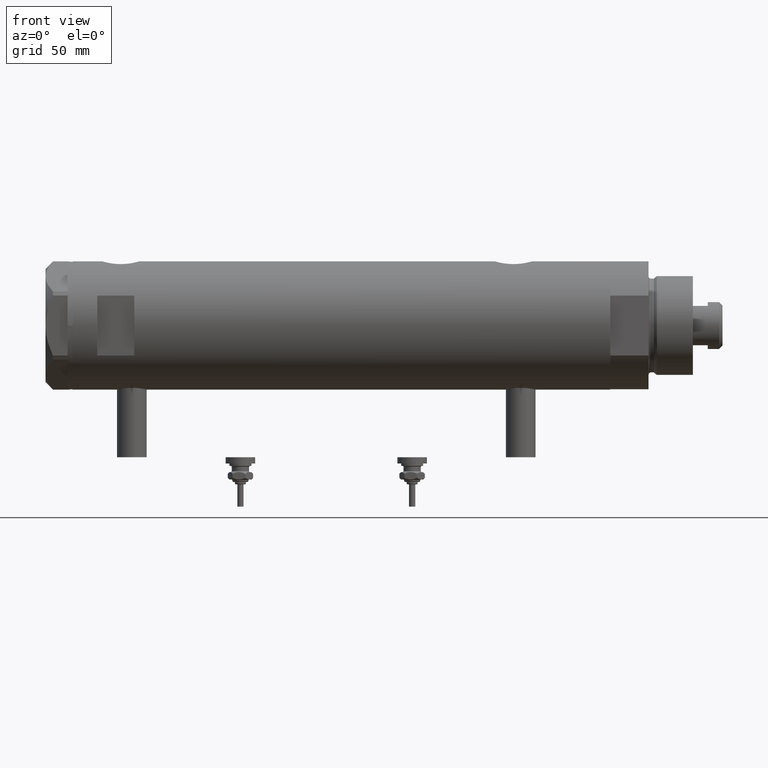
[diagram: clean part render]
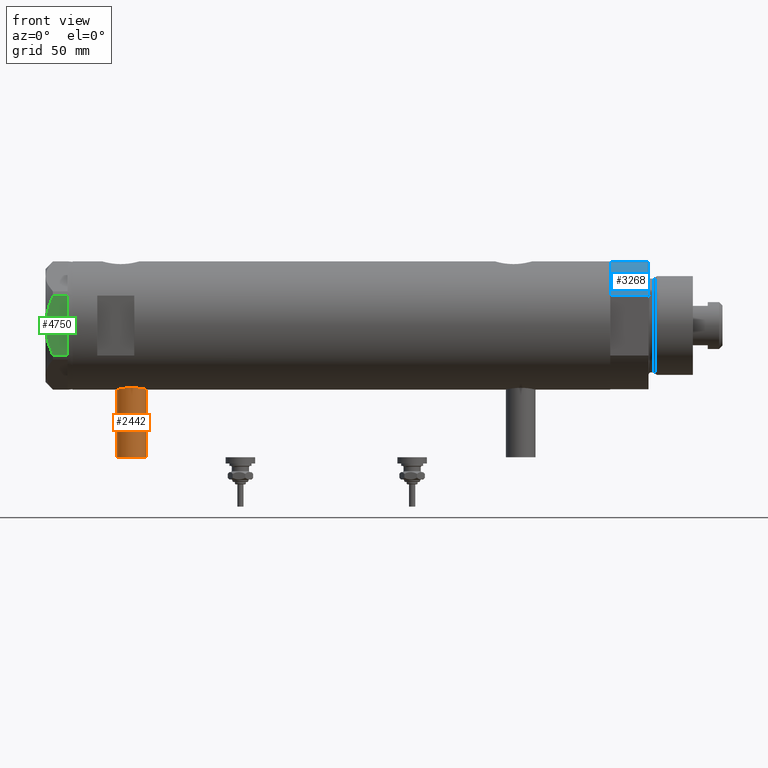
[diagram: same view with three faces highlighted in distinct colors, each labeled with its STEP entity id]
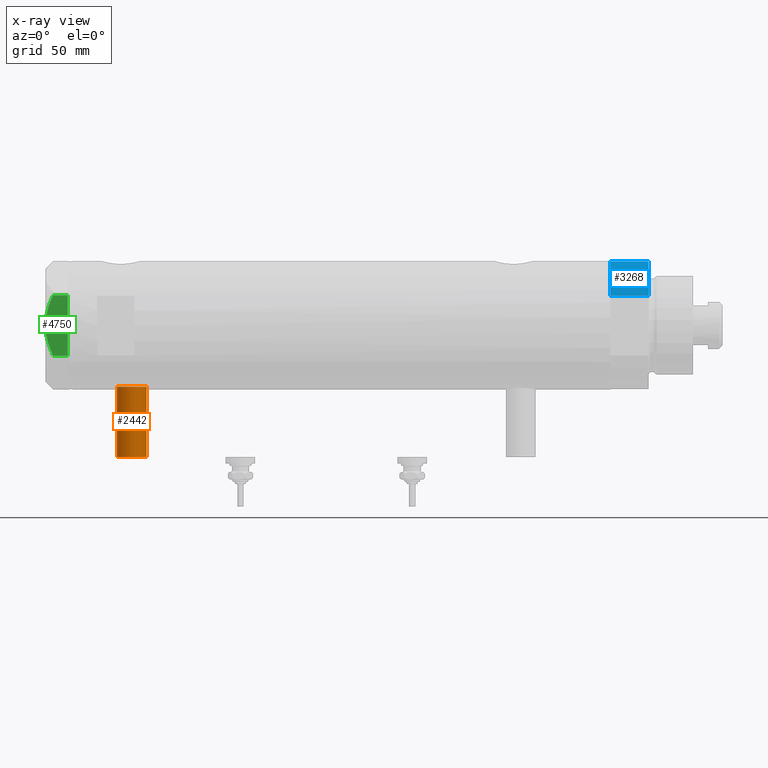
[diagram: x-ray of the same camera — body ghosted, the three highlighted faces saturated]
A machine part, front view with three faces highlighted in distinct colors.
The next image is the same camera in x-ray (body ghosted, the three faces saturated) — at least one of them is partly hidden behind the body in this view.
Their STEP definitions:

[orange] entity #2442 — the highlighted cylindrical surface (edge-blend (fillet) strip) has radius 6 mm, axis along (0, 0, 1).
#20 = LINE ( 'NONE', #2933, #6254 ) ;
#389 = VERTEX_POINT ( 'NONE', #2822 ) ;
#465 = DIRECTION ( 'NONE',  ( 0.000000000000000000, 0.000000000000000000, 1.000000000000000000 ) ) ;
#752 = VERTEX_POINT ( 'NONE', #2598 ) ;
#934 = AXIS2_PLACEMENT_3D ( 'NONE', #2471, #5476, #2539 ) ;
#972 = CARTESIAN_POINT ( 'NONE',  ( -53.40000000000000568, 0.000000000000000000, 84.95000000000000284 ) ) ;
#1133 = AXIS2_PLACEMENT_3D ( 'NONE', #972, #2448, #465 ) ;
#1472 = EDGE_CURVE ( 'NONE', #2613, #752, #2057, .T. ) ;
#2057 = CIRCLE ( 'NONE', #1133, 5.999999999999991118 ) ;
#2099 = DIRECTION ( 'NONE',  ( 0.000000000000000000, 0.000000000000000000, 1.000000000000000000 ) ) ;
#2103 = EDGE_CURVE ( 'NONE', #752, #389, #2445, .T. ) ;
#2442 = ADVANCED_FACE ( 'NONE', ( #3528 ), #3020, .T. ) ;
#2445 = LINE ( 'NONE', #3939, #4502 ) ;
#2448 = DIRECTION ( 'NONE',  ( -1.000000000000000000, 0.000000000000000000, 0.000000000000000000 ) ) ;
#2471 = CARTESIAN_POINT ( 'NONE',  ( -53.40000000000000568, 0.000000000000000000, 84.95000000000000284 ) ) ;
#2539 = DIRECTION ( 'NONE',  ( 0.000000000000000000, 0.000000000000000000, -1.000000000000000000 ) ) ;
#2598 = CARTESIAN_POINT ( 'NONE',  ( -53.40000000000000568, 7.347880794884101001E-16, 90.94999999999998863 ) ) ;
#2613 = VERTEX_POINT ( 'NONE', #3170 ) ;
#2793 = ORIENTED_EDGE ( 'NONE', *, *, #2103, .F. ) ;
#2822 = CARTESIAN_POINT ( 'NONE',  ( -24.80000000000000426, 7.347880794884101001E-16, 90.94999999999998863 ) ) ;
#2933 = CARTESIAN_POINT ( 'NONE',  ( -53.40000000000000568, 0.000000000000000000, 78.95000000000000284 ) ) ;
#3020 = CYLINDRICAL_SURFACE ( 'NONE', #934, 5.999999999999991118 ) ;
#3057 = DIRECTION ( 'NONE',  ( -1.000000000000000000, 0.000000000000000000, 0.000000000000000000 ) ) ;
#3170 = CARTESIAN_POINT ( 'NONE',  ( -53.40000000000000568, 0.000000000000000000, 78.95000000000000284 ) ) ;
#3528 = FACE_OUTER_BOUND ( 'NONE', #5582, .T. ) ;
#3661 = EDGE_CURVE ( 'NONE', #2613, #6178, #20, .T. ) ;
#3765 = EDGE_CURVE ( 'NONE', #6178, #389, #5325, .T. ) ;
#3905 = DIRECTION ( 'NONE',  ( 1.000000000000000000, -0.000000000000000000, -0.000000000000000000 ) ) ;
#3939 = CARTESIAN_POINT ( 'NONE',  ( -53.40000000000000568, 7.347880794884104945E-16, 90.94999999999998863 ) ) ;
#4196 = AXIS2_PLACEMENT_3D ( 'NONE', #5485, #3057, #2099 ) ;
#4502 = VECTOR ( 'NONE', #3905, 1000.000000000000000 ) ;
#4934 = DIRECTION ( 'NONE',  ( 1.000000000000000000, -0.000000000000000000, -0.000000000000000000 ) ) ;
#5045 = ORIENTED_EDGE ( 'NONE', *, *, #3661, .T. ) ;
#5325 = CIRCLE ( 'NONE', #4196, 5.999999999999991118 ) ;
#5441 = CARTESIAN_POINT ( 'NONE',  ( -24.80000000000000426, 0.000000000000000000, 78.95000000000000284 ) ) ;
#5476 = DIRECTION ( 'NONE',  ( 1.000000000000000000, -0.000000000000000000, -0.000000000000000000 ) ) ;
#5485 = CARTESIAN_POINT ( 'NONE',  ( -24.80000000000000426, 0.000000000000000000, 84.95000000000000284 ) ) ;
#5582 = EDGE_LOOP ( 'NONE', ( #2793, #6241, #5045, #5609 ) ) ;
#5609 = ORIENTED_EDGE ( 'NONE', *, *, #3765, .T. ) ;
#6178 = VERTEX_POINT ( 'NONE', #5441 ) ;
#6241 = ORIENTED_EDGE ( 'NONE', *, *, #1472, .F. ) ;
#6254 = VECTOR ( 'NONE', #4934, 1000.000000000000000 ) ;

[blue] entity #3268 — the highlighted cylindrical surface (partial cylindrical patch) has radius 26 mm, axis along (-1, -0, 0).
#94 = FACE_OUTER_BOUND ( 'NONE', #3862, .T. ) ;
#875 = ORIENTED_EDGE ( 'NONE', *, *, #1741, .T. ) ;
#887 = CARTESIAN_POINT ( 'NONE',  ( -26.00000000000000355, 0.000000000000000000, 15.50000000000000000 ) ) ;
#1006 = EDGE_CURVE ( 'NONE', #2199, #6092, #4363, .T. ) ;
#1026 = VECTOR ( 'NONE', #1940, 1000.000000000000000 ) ;
#1267 = CIRCLE ( 'NONE', #2600, 26.00000000000000355 ) ;
#1348 = CARTESIAN_POINT ( 'NONE',  ( -26.00000000000000355, 0.000000000000000000, 0.000000000000000000 ) ) ;
#1458 = CARTESIAN_POINT ( 'NONE',  ( -12.12435565298215145, -22.99999999999999645, 0.000000000000000000 ) ) ;
#1493 = CARTESIAN_POINT ( 'NONE',  ( 0.000000000000000000, 0.000000000000000000, 15.50000000000000000 ) ) ;
#1656 = DIRECTION ( 'NONE',  ( 0.000000000000000000, 0.000000000000000000, 1.000000000000000000 ) ) ;
#1741 = EDGE_CURVE ( 'NONE', #6092, #6144, #3188, .T. ) ;
#1940 = DIRECTION ( 'NONE',  ( -0.000000000000000000, -0.000000000000000000, -1.000000000000000000 ) ) ;
#2199 = VERTEX_POINT ( 'NONE', #2702 ) ;
#2470 = AXIS2_PLACEMENT_3D ( 'NONE', #3642, #1656, #3134 ) ;
#2523 = CYLINDRICAL_SURFACE ( 'NONE', #3486, 26.00000000000000355 ) ;
#2600 = AXIS2_PLACEMENT_3D ( 'NONE', #5167, #5384, #5194 ) ;
#2665 = CARTESIAN_POINT ( 'NONE',  ( -12.12435565298215323, -22.99999999999999645, 15.50000000000000000 ) ) ;
#2702 = CARTESIAN_POINT ( 'NONE',  ( -26.00000000000000355, 0.000000000000000000, 15.50000000000000000 ) ) ;
#3134 = DIRECTION ( 'NONE',  ( 1.000000000000000000, 0.000000000000000000, 0.000000000000000000 ) ) ;
#3188 = CIRCLE ( 'NONE', #2470, 26.00000000000000355 ) ;
#3268 = ADVANCED_FACE ( 'NONE', ( #94 ), #2523, .T. ) ;
#3419 = EDGE_CURVE ( 'NONE', #6144, #6005, #3880, .T. ) ;
#3486 = AXIS2_PLACEMENT_3D ( 'NONE', #1493, #6299, #4809 ) ;
#3642 = CARTESIAN_POINT ( 'NONE',  ( 0.000000000000000000, 0.000000000000000000, 0.000000000000000000 ) ) ;
#3862 = EDGE_LOOP ( 'NONE', ( #4578, #4793, #875, #5692 ) ) ;
#3880 = LINE ( 'NONE', #1458, #3883 ) ;
#3883 = VECTOR ( 'NONE', #5329, 1000.000000000000000 ) ;
#4363 = LINE ( 'NONE', #887, #1026 ) ;
#4578 = ORIENTED_EDGE ( 'NONE', *, *, #5579, .F. ) ;
#4793 = ORIENTED_EDGE ( 'NONE', *, *, #1006, .T. ) ;
#4809 = DIRECTION ( 'NONE',  ( -1.000000000000000000, 0.000000000000000000, 0.000000000000000000 ) ) ;
#5167 = CARTESIAN_POINT ( 'NONE',  ( 0.000000000000000000, 0.000000000000000000, 15.50000000000000000 ) ) ;
#5194 = DIRECTION ( 'NONE',  ( 1.000000000000000000, 0.000000000000000000, 0.000000000000000000 ) ) ;
#5329 = DIRECTION ( 'NONE',  ( -0.000000000000000000, -0.000000000000000000, 1.000000000000000000 ) ) ;
#5384 = DIRECTION ( 'NONE',  ( 0.000000000000000000, 0.000000000000000000, 1.000000000000000000 ) ) ;
#5579 = EDGE_CURVE ( 'NONE', #2199, #6005, #1267, .T. ) ;
#5692 = ORIENTED_EDGE ( 'NONE', *, *, #3419, .T. ) ;
#5887 = CARTESIAN_POINT ( 'NONE',  ( -12.12435565298215501, -22.99999999999999645, 0.000000000000000000 ) ) ;
#6005 = VERTEX_POINT ( 'NONE', #2665 ) ;
#6092 = VERTEX_POINT ( 'NONE', #1348 ) ;
#6144 = VERTEX_POINT ( 'NONE', #5887 ) ;
#6299 = DIRECTION ( 'NONE',  ( -0.000000000000000000, -0.000000000000000000, -1.000000000000000000 ) ) ;

[green] entity #4750 — the highlighted planar face has unit normal (-0, 1, -0).
#126 = CARTESIAN_POINT ( 'NONE',  ( -22.99999999999990763, -12.15905619136147564, 5.983800287807627072 ) ) ;
#220 = CARTESIAN_POINT ( 'NONE',  ( -22.99999999999992895, -5.228918809624124364, 8.433337033849854336 ) ) ;
#251 = CARTESIAN_POINT ( 'NONE',  ( -22.99999999999990763, -11.68282849742335827, 6.206372352695425754 ) ) ;
#262 = CARTESIAN_POINT ( 'NONE',  ( -22.99999999999999289, 12.15905619136133176, 5.983800287807616414 ) ) ;
#265 = CARTESIAN_POINT ( 'NONE',  ( -22.99999999999995381, 2.122900714018063795, 9.000000000000092371 ) ) ;
#364 = LINE ( 'NONE', #5795, #4706 ) ;
#437 = VERTEX_POINT ( 'NONE', #1890 ) ;
#688 = CARTESIAN_POINT ( 'NONE',  ( -22.99999999999993250, -4.203926054641964782, 8.641681223122507305 ) ) ;
#735 = CARTESIAN_POINT ( 'NONE',  ( -22.99999999999998579, 10.23890159976122050, 6.840812428290914404 ) ) ;
#794 = CARTESIAN_POINT ( 'NONE',  ( -22.99999999999996803, 4.194757081058972936, 8.703000351525203016 ) ) ;
#850 = FACE_OUTER_BOUND ( 'NONE', #2703, .T. ) ;
#997 = LINE ( 'NONE', #2298, #6069 ) ;
#1004 = CARTESIAN_POINT ( 'NONE',  ( -22.99999999999990763, -12.15905619136147564, 5.983800287807627072 ) ) ;
#1045 = DIRECTION ( 'NONE',  ( 3.527173405730720141E-15, -1.000000000000000000, 0.000000000000000000 ) ) ;
#1083 = EDGE_CURVE ( 'NONE', #437, #2892, #3570, .T. ) ;
#1094 = LINE ( 'NONE', #5024, #1460 ) ;
#1139 = CARTESIAN_POINT ( 'NONE',  ( -22.99999999999999645, 13.27905619136132032, 0.000000000000000000 ) ) ;
#1152 = CARTESIAN_POINT ( 'NONE',  ( -22.99999999999996803, 7.239756182922199024, 7.892186063422847120 ) ) ;
#1247 = CARTESIAN_POINT ( 'NONE',  ( -23.00000000000004619, -8.112498833180673323E-14, 9.000000000000000000 ) ) ;
#1364 = DIRECTION ( 'NONE',  ( 1.000000000000000000, 3.527173405730720141E-15, -0.000000000000000000 ) ) ;
#1423 = VERTEX_POINT ( 'NONE', #5320 ) ;
#1460 = VECTOR ( 'NONE', #2024, 1000.000000000000000 ) ;
#1565 = ORIENTED_EDGE ( 'NONE', *, *, #5300, .T. ) ;
#1667 = VERTEX_POINT ( 'NONE', #1004 ) ;
#1682 = CARTESIAN_POINT ( 'NONE',  ( -22.99999999999992184, -7.253003311474388148, 7.903276810347638737 ) ) ;
#1691 = CARTESIAN_POINT ( 'NONE',  ( -22.99999999999990763, -12.12435565298232021, 0.000000000000000000 ) ) ;
#1699 = B_SPLINE_CURVE_WITH_KNOTS ( 'NONE', 3,
 ( #4490, #3129, #2589, #3155, #5072, #688, #220, #1682, #4557, #3569, #3035, #4527, #251, #126 ),
 .UNSPECIFIED., .F., .F.,
 ( 4, 2, 2, 2, 2, 2, 4 ),
 ( 0.04777139595992690307, 0.04934380568070229761, 0.05091621540147769215, 0.05406103484302848122, 0.05720585428457927030, 0.05877826400535466483, 0.06035067372613005937 ),
 .UNSPECIFIED. ) ;
#1890 = CARTESIAN_POINT ( 'NONE',  ( -22.99999999999999289, 12.12435565298215856, 0.000000000000000000 ) ) ;
#1898 = DIRECTION ( 'NONE',  ( 3.527173405730720141E-15, -1.000000000000000000, 0.000000000000000000 ) ) ;
#1950 = CARTESIAN_POINT ( 'NONE',  ( -22.99999999999999289, 12.15905619136133176, 0.000000000000000000 ) ) ;
#2024 = DIRECTION ( 'NONE',  ( 0.000000000000000000, 0.000000000000000000, -1.000000000000000000 ) ) ;
#2240 = CARTESIAN_POINT ( 'NONE',  ( -22.99999999999999289, 12.15905619136133176, 5.983800287807616414 ) ) ;
#2261 = PLANE ( 'NONE',  #3508 ) ;
#2298 = CARTESIAN_POINT ( 'NONE',  ( -22.99999999999999645, 13.27905619136132032, 0.000000000000000000 ) ) ;
#2304 = EDGE_CURVE ( 'NONE', #4017, #437, #364, .T. ) ;
#2400 = ORIENTED_EDGE ( 'NONE', *, *, #3436, .F. ) ;
#2589 = CARTESIAN_POINT ( 'NONE',  ( -22.99999999999995026, -1.063773509315737442, 8.981438083606830602 ) ) ;
#2634 = ORIENTED_EDGE ( 'NONE', *, *, #1083, .T. ) ;
#2692 = CARTESIAN_POINT ( 'NONE',  ( -22.99999999999997158, 6.734330413511419700, 8.039389741252668031 ) ) ;
#2703 = EDGE_LOOP ( 'NONE', ( #5881, #1565, #5416, #2634, #4354, #3563, #2400 ) ) ;
#2721 = CARTESIAN_POINT ( 'NONE',  ( -22.99999999999998224, 8.246028007352361300, 7.571131808646907935 ) ) ;
#2892 = VERTEX_POINT ( 'NONE', #1691 ) ;
#3035 = CARTESIAN_POINT ( 'NONE',  ( -22.99999999999991118, -10.22738952213794761, 6.832470313674783746 ) ) ;
#3129 = CARTESIAN_POINT ( 'NONE',  ( -22.99999999999995737, -0.5295934231897764244, 9.000000000000092371 ) ) ;
#3155 = CARTESIAN_POINT ( 'NONE',  ( -22.99999999999993960, -2.119709279061923191, 8.908535212173198659 ) ) ;
#3166 = CARTESIAN_POINT ( 'NONE',  ( -22.99999999999990763, -12.15905619136147386, 9.000000000000000000 ) ) ;
#3282 = VECTOR ( 'NONE', #1045, 1000.000000000000000 ) ;
#3436 = EDGE_CURVE ( 'NONE', #1423, #1667, #1699, .T. ) ;
#3508 = AXIS2_PLACEMENT_3D ( 'NONE', #3785, #1364, #5228 ) ;
#3563 = ORIENTED_EDGE ( 'NONE', *, *, #4305, .T. ) ;
#3569 = CARTESIAN_POINT ( 'NONE',  ( -22.99999999999991829, -9.734726261263297431, 7.028924700095662281 ) ) ;
#3570 = LINE ( 'NONE', #1139, #3282 ) ;
#3785 = CARTESIAN_POINT ( 'NONE',  ( -22.99999999999999645, 13.27905619136132032, 9.000000000000000000 ) ) ;
#4017 = VERTEX_POINT ( 'NONE', #1950 ) ;
#4060 = CARTESIAN_POINT ( 'NONE',  ( -22.99999999999997513, 8.748091966971378142, 7.396818978284571244 ) ) ;
#4236 = DIRECTION ( 'NONE',  ( 3.527173405730720141E-15, -1.000000000000000000, 0.000000000000000000 ) ) ;
#4305 = EDGE_CURVE ( 'NONE', #5198, #1667, #6077, .T. ) ;
#4322 = VERTEX_POINT ( 'NONE', #262 ) ;
#4354 = ORIENTED_EDGE ( 'NONE', *, *, #5614, .T. ) ;
#4365 = B_SPLINE_CURVE_WITH_KNOTS ( 'NONE', 3,
 ( #2240, #5176, #735, #4060, #2721, #1152, #2692, #794, #265, #1247 ),
 .UNSPECIFIED., .F., .F.,
 ( 4, 2, 2, 2, 4 ),
 ( 0.03516523594057416324, 0.03831677594541234300, 0.03989254594783143981, 0.04146831595025052969, 0.04777139595992690307 ),
 .UNSPECIFIED. ) ;
#4490 = CARTESIAN_POINT ( 'NONE',  ( -23.00000000000004619, -8.112498833180673323E-14, 9.000000000000000000 ) ) ;
#4527 = CARTESIAN_POINT ( 'NONE',  ( -22.99999999999991118, -11.20155944044816287, 6.421102682632757741 ) ) ;
#4557 = CARTESIAN_POINT ( 'NONE',  ( -22.99999999999991829, -8.252113629125268801, 7.581642062680223226 ) ) ;
#4706 = VECTOR ( 'NONE', #1898, 1000.000000000000000 ) ;
#4750 = ADVANCED_FACE ( 'NONE', ( #850 ), #2261, .F. ) ;
#5024 = CARTESIAN_POINT ( 'NONE',  ( -22.99999999999999289, 12.15905619136133176, 9.000000000000000000 ) ) ;
#5072 = CARTESIAN_POINT ( 'NONE',  ( -22.99999999999993960, -2.643615312305158671, 8.854304560636265364 ) ) ;
#5109 = DIRECTION ( 'NONE',  ( 0.000000000000000000, 0.000000000000000000, 1.000000000000000000 ) ) ;
#5176 = CARTESIAN_POINT ( 'NONE',  ( -22.99999999999998934, 11.20825071633916359, 6.428173306378450746 ) ) ;
#5198 = VERTEX_POINT ( 'NONE', #5824 ) ;
#5228 = DIRECTION ( 'NONE',  ( -3.527173405730720141E-15, 1.000000000000000000, 0.000000000000000000 ) ) ;
#5300 = EDGE_CURVE ( 'NONE', #4322, #4017, #1094, .T. ) ;
#5320 = CARTESIAN_POINT ( 'NONE',  ( -23.00000000000004619, -8.112498833180673323E-14, 9.000000000000000000 ) ) ;
#5416 = ORIENTED_EDGE ( 'NONE', *, *, #2304, .T. ) ;
#5614 = EDGE_CURVE ( 'NONE', #2892, #5198, #997, .T. ) ;
#5795 = CARTESIAN_POINT ( 'NONE',  ( -22.99999999999999645, 13.27905619136132032, 0.000000000000000000 ) ) ;
#5824 = CARTESIAN_POINT ( 'NONE',  ( -22.99999999999990763, -12.15905619136147386, 0.000000000000000000 ) ) ;
#5845 = VECTOR ( 'NONE', #5109, 1000.000000000000000 ) ;
#5881 = ORIENTED_EDGE ( 'NONE', *, *, #6325, .F. ) ;
#6069 = VECTOR ( 'NONE', #4236, 1000.000000000000000 ) ;
#6077 = LINE ( 'NONE', #3166, #5845 ) ;
#6325 = EDGE_CURVE ( 'NONE', #4322, #1423, #4365, .T. ) ;